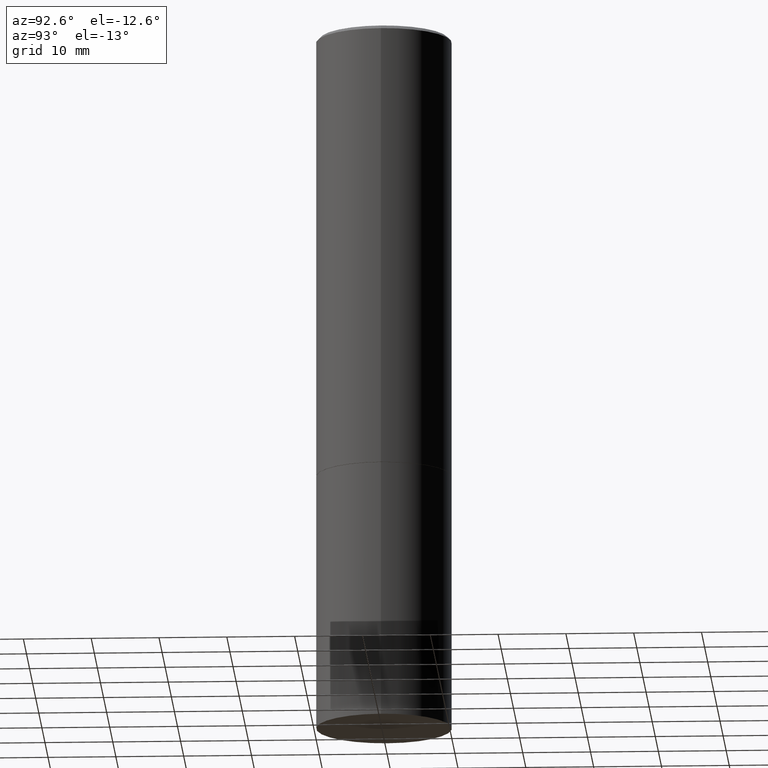
[diagram: clean part render]
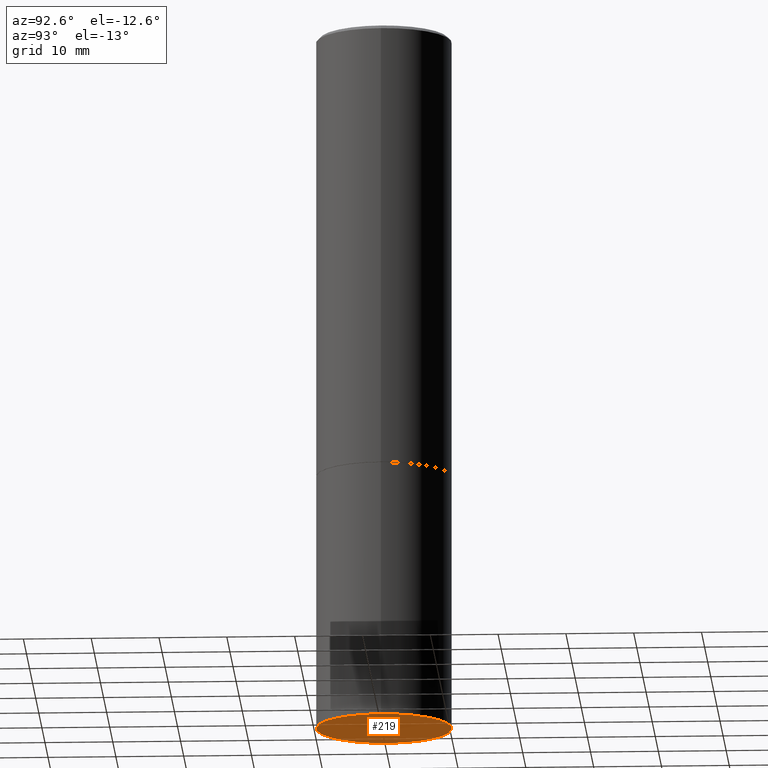
[diagram: same view with one face highlighted and labeled with its STEP entity id]
A machine part, auxiliary view. The second image highlights one B-rep face of the part: STEP entity #219.
In plain terms, the highlighted planar face has unit normal (0, -0, -1).
Its self-contained STEP definition (entity closure, byte-faithful):
#12 = CARTESIAN_POINT ( 'NONE',  ( 1.001297202692504215E-28, -1.429587034189326149E-14, -4.094500000000000028 ) ) ;
#17 = EDGE_CURVE ( 'NONE', #96, #143, #222, .T. ) ;
#44 = CARTESIAN_POINT ( 'NONE',  ( -0.3937000000000000499, -8.886660975684131482E-15, -4.094500000000000028 ) ) ;
#65 = DIRECTION ( 'NONE',  ( -1.000000000000000000, 6.982962677686265922E-15, -4.876176775795935793E-29 ) ) ;
#69 = AXIS2_PLACEMENT_3D ( 'NONE', #12, #153, #209 ) ;
#96 = VERTEX_POINT ( 'NONE', #44 ) ;
#105 = AXIS2_PLACEMENT_3D ( 'NONE', #206, #121, #324 ) ;
#121 = DIRECTION ( 'NONE',  ( -2.445468806185136597E-29, 3.491481338843145583E-15, 1.000000000000000000 ) ) ;
#143 = VERTEX_POINT ( 'NONE', #150 ) ;
#144 = ORIENTED_EDGE ( 'NONE', *, *, #189, .F. ) ;
#145 = PLANE ( 'NONE',  #308 ) ;
#150 = CARTESIAN_POINT ( 'NONE',  ( 0.3937000000000000499, -1.704506274809834471E-14, -4.094500000000000028 ) ) ;
#153 = DIRECTION ( 'NONE',  ( -2.445468806185136597E-29, 3.491481338843145583E-15, 1.000000000000000000 ) ) ;
#189 = EDGE_CURVE ( 'NONE', #143, #96, #261, .T. ) ;
#206 = CARTESIAN_POINT ( 'NONE',  ( 1.001297202692504215E-28, -1.429587034189326149E-14, -4.094500000000000028 ) ) ;
#209 = DIRECTION ( 'NONE',  ( 1.000000000000000000, -6.982962677686267499E-15, 0.000000000000000000 ) ) ;
#213 = DIRECTION ( 'NONE',  ( 2.438088387897960049E-29, -3.491481338843145188E-15, -1.000000000000000000 ) ) ;
#214 = EDGE_LOOP ( 'NONE', ( #144, #309 ) ) ;
#219 = ADVANCED_FACE ( 'NONE', ( #317 ), #145, .T. ) ;
#222 = CIRCLE ( 'NONE', #69, 0.3937000000000000499 ) ;
#261 = CIRCLE ( 'NONE', #105, 0.3937000000000000499 ) ;
#308 = AXIS2_PLACEMENT_3D ( 'NONE', #316, #213, #65 ) ;
#309 = ORIENTED_EDGE ( 'NONE', *, *, #17, .F. ) ;
#316 = CARTESIAN_POINT ( 'NONE',  ( 2.749192406205183007E-15, 0.3936999999999857280, -4.094500000000001805 ) ) ;
#317 = FACE_OUTER_BOUND ( 'NONE', #214, .T. ) ;
#324 = DIRECTION ( 'NONE',  ( 1.000000000000000000, -6.982962677686267499E-15, 0.000000000000000000 ) ) ;